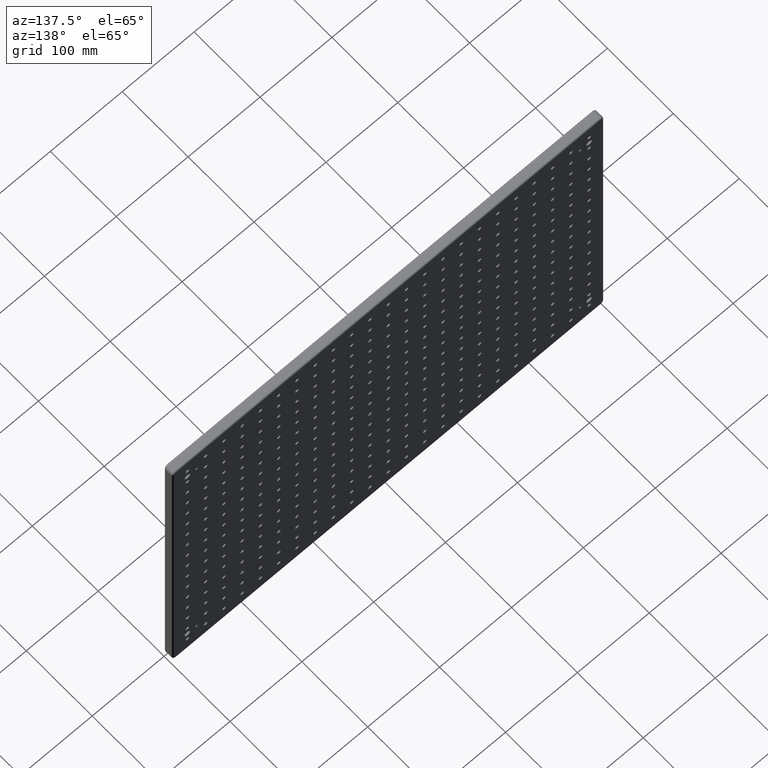
[diagram: clean part render]
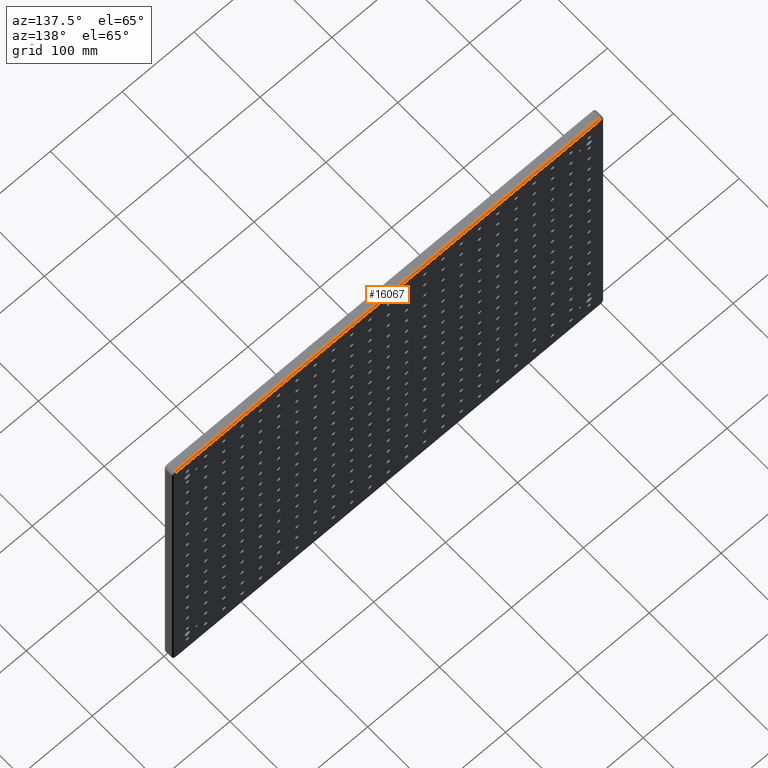
[diagram: same view with one face highlighted and labeled with its STEP entity id]
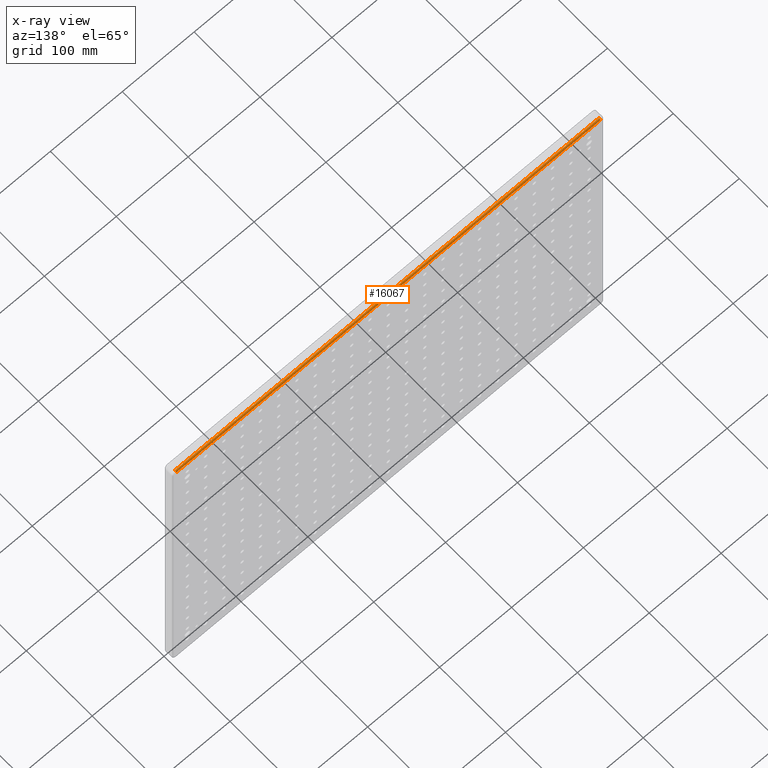
[diagram: x-ray of the same camera — body ghosted, the highlighted face saturated]
A machine part, auxiliary view. The second image highlights one B-rep face of the part: STEP entity #16067.
The next image is the same camera in x-ray: the body ghosted, the highlighted face saturated — about 0% of this face is hidden behind the body in this view.
In plain terms, the highlighted cylindrical surface (edge-blend (fillet) strip) has radius 2 mm, axis along (-1, 0, 0).
Its self-contained STEP definition (entity closure, byte-faithful):
#1549 = VECTOR ( 'NONE', #5898, 1000.000000000000000 ) ;
#1760 = ORIENTED_EDGE ( 'NONE', *, *, #6404, .F. ) ;
#1767 = CYLINDRICAL_SURFACE ( 'NONE', #2841, 2.000000000000001800 ) ;
#2841 = AXIS2_PLACEMENT_3D ( 'NONE', #3528, #24733, #10552 ) ;
#3240 = EDGE_CURVE ( 'NONE', #6296, #10942, #19464, .T. ) ;
#3420 = VERTEX_POINT ( 'NONE', #20161 ) ;
#3528 = CARTESIAN_POINT ( 'NONE',  ( -295.0000000000000000, 11.00000000000000000, 223.0000000000000300 ) ) ;
#5898 = DIRECTION ( 'NONE',  ( 1.000000000000000000, -0.0000000000000000000, 0.0000000000000000000 ) ) ;
#6296 = VERTEX_POINT ( 'NONE', #29162 ) ;
#6404 = EDGE_CURVE ( 'NONE', #3420, #6296, #24655, .T. ) ;
#7701 = FACE_OUTER_BOUND ( 'NONE', #27872, .T. ) ;
#8739 = DIRECTION ( 'NONE',  ( 0.0000000000000000000, 0.0000000000000000000, 1.000000000000000000 ) ) ;
#10552 = DIRECTION ( 'NONE',  ( 0.0000000000000000000, 0.0000000000000000000, 1.000000000000000000 ) ) ;
#10889 = CARTESIAN_POINT ( 'NONE',  ( 295.0000000000000000, 11.00000000000000000, 222.9999999999999100 ) ) ;
#10942 = VERTEX_POINT ( 'NONE', #13268 ) ;
#11474 = LINE ( 'NONE', #27132, #1549 ) ;
#12277 = AXIS2_PLACEMENT_3D ( 'NONE', #10889, #20226, #8739 ) ;
#13124 = DIRECTION ( 'NONE',  ( -1.000000000000000000, -0.0000000000000000000, -0.0000000000000000000 ) ) ;
#13268 = CARTESIAN_POINT ( 'NONE',  ( -295.0000000000000000, 13.00000000000000000, 223.0000000000000300 ) ) ;
#14824 = VERTEX_POINT ( 'NONE', #20969 ) ;
#15198 = CARTESIAN_POINT ( 'NONE',  ( -295.0000000000000000, 11.00000000000000000, 223.0000000000000300 ) ) ;
#16067 = ADVANCED_FACE ( 'NONE', ( #7701 ), #1767, .T. ) ;
#18351 = VECTOR ( 'NONE', #13124, 1000.000000000000000 ) ;
#19464 = CIRCLE ( 'NONE', #27874, 2.000000000000001800 ) ;
#20161 = CARTESIAN_POINT ( 'NONE',  ( 295.0000000000000000, 11.00000000000000000, 224.9999999999999100 ) ) ;
#20226 = DIRECTION ( 'NONE',  ( -1.000000000000000000, 0.0000000000000000000, 0.0000000000000000000 ) ) ;
#20969 = CARTESIAN_POINT ( 'NONE',  ( 295.0000000000000000, 13.00000000000000000, 223.0000000000000300 ) ) ;
#21736 = ORIENTED_EDGE ( 'NONE', *, *, #3240, .F. ) ;
#22493 = ORIENTED_EDGE ( 'NONE', *, *, #25011, .T. ) ;
#24655 = LINE ( 'NONE', #27092, #18351 ) ;
#24733 = DIRECTION ( 'NONE',  ( -1.000000000000000000, 0.0000000000000000000, 0.0000000000000000000 ) ) ;
#25011 = EDGE_CURVE ( 'NONE', #3420, #14824, #25216, .T. ) ;
#25216 = CIRCLE ( 'NONE', #12277, 2.000000000000001800 ) ;
#26680 = DIRECTION ( 'NONE',  ( 0.0000000000000000000, 0.0000000000000000000, 1.000000000000000000 ) ) ;
#27092 = CARTESIAN_POINT ( 'NONE',  ( -295.0000000000000000, 11.00000000000000000, 225.0000000000000300 ) ) ;
#27132 = CARTESIAN_POINT ( 'NONE',  ( 295.0000000000000000, 13.00000000000000000, 223.0000000000000300 ) ) ;
#27566 = EDGE_CURVE ( 'NONE', #10942, #14824, #11474, .T. ) ;
#27872 = EDGE_LOOP ( 'NONE', ( #22493, #29436, #21736, #1760 ) ) ;
#27874 = AXIS2_PLACEMENT_3D ( 'NONE', #15198, #29142, #26680 ) ;
#29142 = DIRECTION ( 'NONE',  ( -1.000000000000000000, 0.0000000000000000000, 0.0000000000000000000 ) ) ;
#29162 = CARTESIAN_POINT ( 'NONE',  ( -295.0000000000000000, 11.00000000000000000, 225.0000000000000300 ) ) ;
#29436 = ORIENTED_EDGE ( 'NONE', *, *, #27566, .F. ) ;